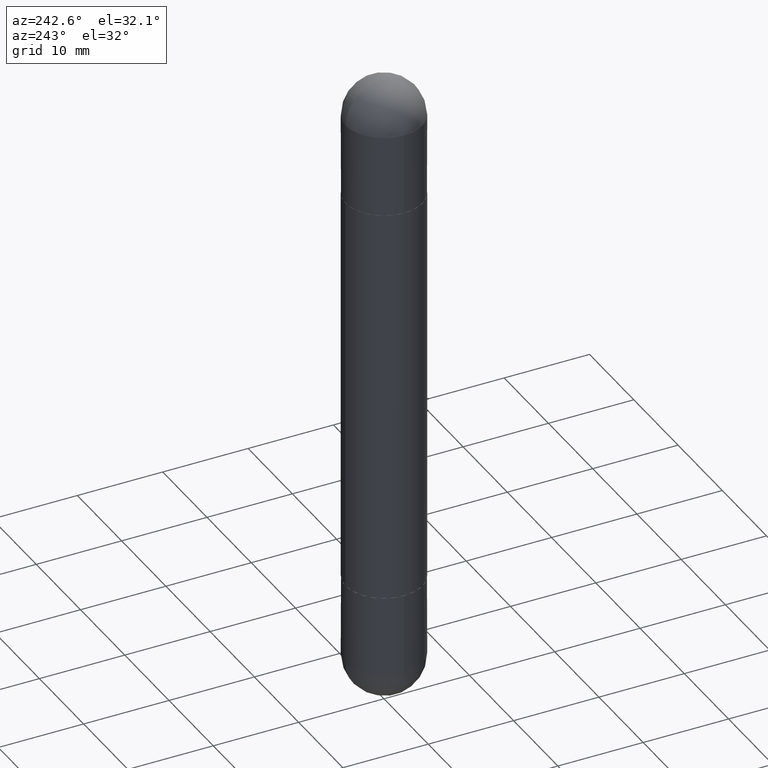
[diagram: clean part render]
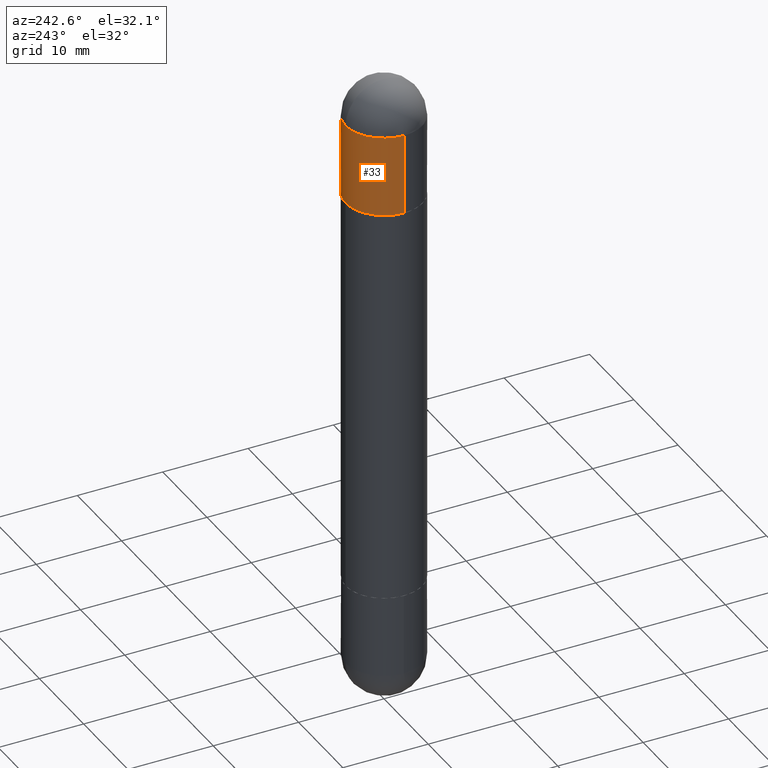
[diagram: same view with one face highlighted and labeled with its STEP entity id]
A machine part, auxiliary view. The second image highlights one B-rep face of the part: STEP entity #33.
In plain terms, the highlighted cylindrical surface (partial cylindrical patch) has radius 4.4996 mm, axis along (-0, 0, -1).
Its self-contained STEP definition (entity closure, byte-faithful):
#9 = DIRECTION ( 'NONE',  ( 1.000000000000000000, -6.982962677686266711E-15, 0.000000000000000000 ) ) ;
#33 = ADVANCED_FACE ( 'NONE', ( #355 ), #175, .T. ) ;
#37 = CARTESIAN_POINT ( 'NONE',  ( -0.1771500000000000019, 1.215337220305226901E-15, -2.952799999999999869 ) ) ;
#46 = CARTESIAN_POINT ( 'NONE',  ( 0.1771500000000000019, -1.237031838352122197E-15, -2.952799999999999869 ) ) ;
#47 = DIRECTION ( 'NONE',  ( -2.445468806185136597E-29, 3.491481338843145583E-15, -1.000000000000000000 ) ) ;
#57 = DIRECTION ( 'NONE',  ( -2.445468806185136877E-29, 3.491481338843145188E-15, -1.000000000000000000 ) ) ;
#93 = CIRCLE ( 'NONE', #192, 0.1771500000000000019 ) ;
#107 = AXIS2_PLACEMENT_3D ( 'NONE', #115, #661, #216 ) ;
#108 = DIRECTION ( 'NONE',  ( 1.000000000000000000, -6.982962677686266711E-15, 0.000000000000000000 ) ) ;
#115 = CARTESIAN_POINT ( 'NONE',  ( 6.787765491887772680E-29, -9.691130178159974964E-15, -0.1771500000000000574 ) ) ;
#116 = LINE ( 'NONE', #46, #538 ) ;
#123 = CARTESIAN_POINT ( 'NONE',  ( 0.000000000000000000, 0.000000000000000000, -2.952799999999999869 ) ) ;
#128 = DIRECTION ( 'NONE',  ( 2.445468806185136597E-29, -3.491481338843145583E-15, 1.000000000000000000 ) ) ;
#149 = VERTEX_POINT ( 'NONE', #658 ) ;
#155 = CARTESIAN_POINT ( 'NONE',  ( 5.873037884934223228E-29, -8.385141583365697263E-15, -0.5512000000000001343 ) ) ;
#156 = AXIS2_PLACEMENT_3D ( 'NONE', #123, #47, #9 ) ;
#175 = CYLINDRICAL_SURFACE ( 'NONE', #156, 0.1771500000000000019 ) ;
#192 = AXIS2_PLACEMENT_3D ( 'NONE', #382, #128, #814 ) ;
#215 = VERTEX_POINT ( 'NONE', #577 ) ;
#216 = DIRECTION ( 'NONE',  ( 1.000000000000000000, -6.982962677686272233E-15, 0.000000000000000000 ) ) ;
#233 = LINE ( 'NONE', #37, #242 ) ;
#242 = VECTOR ( 'NONE', #613, 39.37007874015748143 ) ;
#254 = EDGE_CURVE ( 'NONE', #149, #632, #474, .T. ) ;
#269 = ORIENTED_EDGE ( 'NONE', *, *, #336, .F. ) ;
#291 = DIRECTION ( 'NONE',  ( 2.445468806185136597E-29, -3.491481338843145583E-15, 1.000000000000000000 ) ) ;
#296 = EDGE_CURVE ( 'NONE', #215, #149, #116, .T. ) ;
#325 = CARTESIAN_POINT ( 'NONE',  ( -0.1771500000000000019, -7.822798660457608227E-15, -0.5512000000000001343 ) ) ;
#336 = EDGE_CURVE ( 'NONE', #514, #632, #233, .T. ) ;
#355 = FACE_OUTER_BOUND ( 'NONE', #706, .T. ) ;
#378 = EDGE_CURVE ( 'NONE', #652, #514, #93, .T. ) ;
#382 = CARTESIAN_POINT ( 'NONE',  ( 6.787765491887772680E-29, -9.691130178159974964E-15, -0.1771500000000000574 ) ) ;
#463 = CIRCLE ( 'NONE', #107, 0.1771500000000000019 ) ;
#474 = CIRCLE ( 'NONE', #816, 0.1771500000000000019 ) ;
#514 = VERTEX_POINT ( 'NONE', #576 ) ;
#518 = ORIENTED_EDGE ( 'NONE', *, *, #378, .F. ) ;
#538 = VECTOR ( 'NONE', #57, 39.37007874015748143 ) ;
#576 = CARTESIAN_POINT ( 'NONE',  ( -0.1771500000000000019, -7.822798660457609805E-15, -0.1771500000000000574 ) ) ;
#577 = CARTESIAN_POINT ( 'NONE',  ( 0.1771500000000000019, -1.027516771911496009E-14, -0.1771500000000000574 ) ) ;
#583 = CARTESIAN_POINT ( 'NONE',  ( 1.237031838352189250E-15, 0.1771499999999902042, -0.1771499999999994468 ) ) ;
#613 = DIRECTION ( 'NONE',  ( -2.445468806185136877E-29, 3.491481338843145188E-15, -1.000000000000000000 ) ) ;
#632 = VERTEX_POINT ( 'NONE', #325 ) ;
#649 = ORIENTED_EDGE ( 'NONE', *, *, #296, .T. ) ;
#652 = VERTEX_POINT ( 'NONE', #583 ) ;
#658 = CARTESIAN_POINT ( 'NONE',  ( 0.1771500000000000019, -9.622173421717819657E-15, -0.5512000000000001343 ) ) ;
#661 = DIRECTION ( 'NONE',  ( 2.445468806185136597E-29, -3.491481338843145583E-15, 1.000000000000000000 ) ) ;
#663 = ORIENTED_EDGE ( 'NONE', *, *, #254, .T. ) ;
#706 = EDGE_LOOP ( 'NONE', ( #269, #518, #729, #649, #663 ) ) ;
#729 = ORIENTED_EDGE ( 'NONE', *, *, #775, .F. ) ;
#775 = EDGE_CURVE ( 'NONE', #215, #652, #463, .T. ) ;
#814 = DIRECTION ( 'NONE',  ( 1.000000000000000000, -6.982962677686272233E-15, 0.000000000000000000 ) ) ;
#816 = AXIS2_PLACEMENT_3D ( 'NONE', #155, #291, #108 ) ;